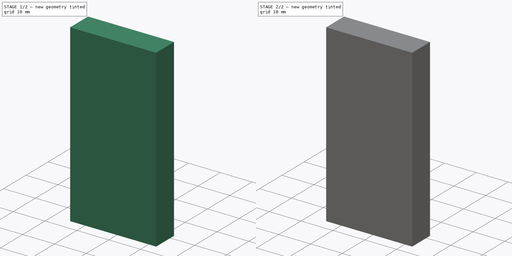
[diagram: build sequence overview — one tinted view per stage of 2, left to right]
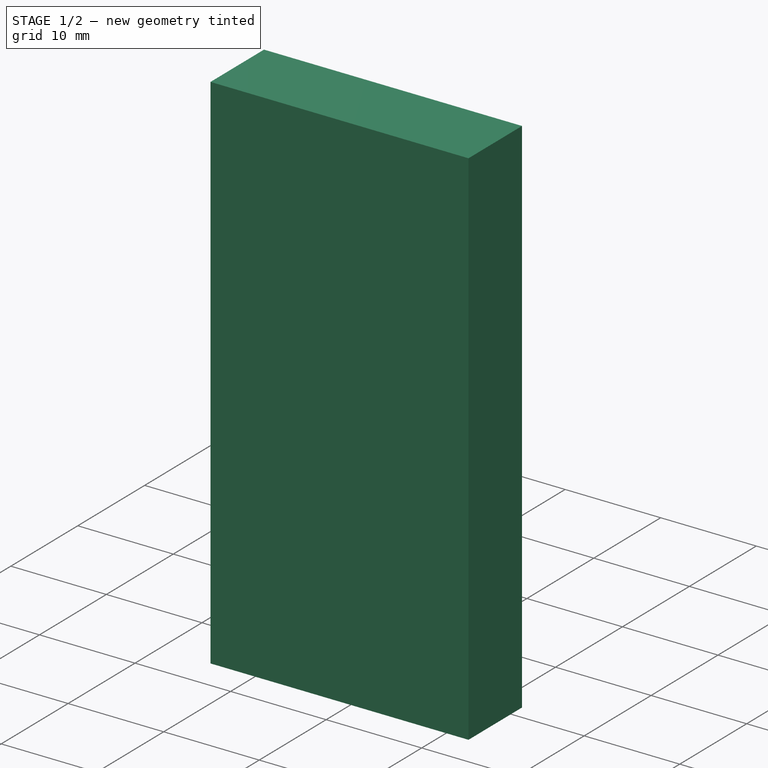
[diagram: stage 1 of 2 — iso view after this stage's code; geometry added in this stage tinted green]
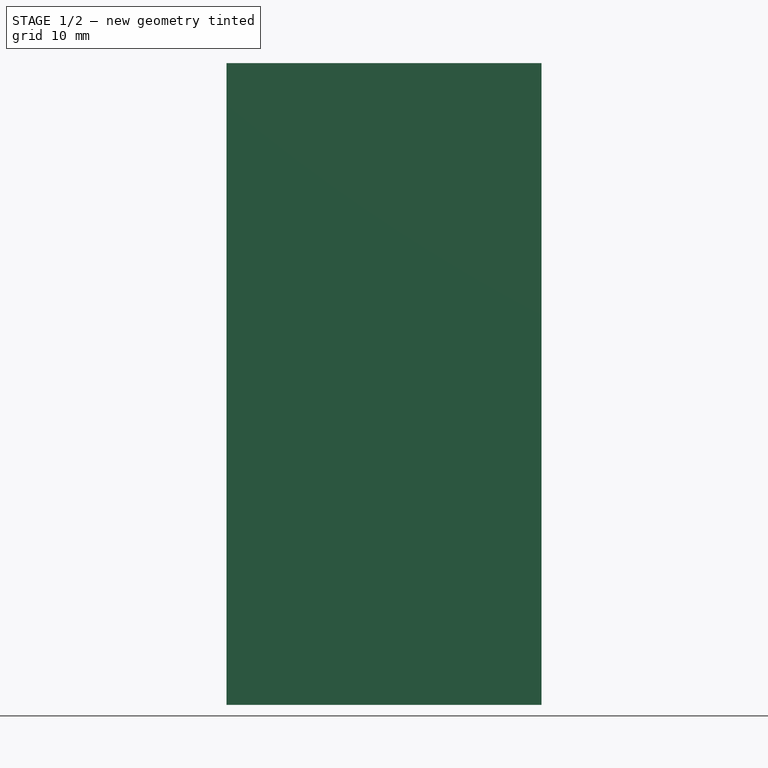
[diagram: stage 1 of 2 — front view after this stage's code; geometry added in this stage tinted green]
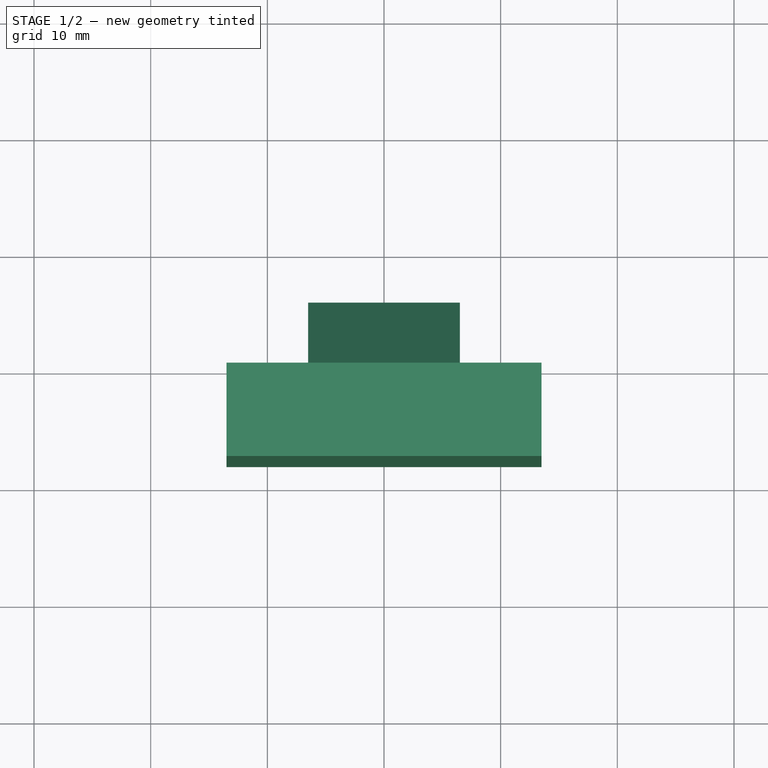
[diagram: stage 1 of 2 — top view after this stage's code; geometry added in this stage tinted green]
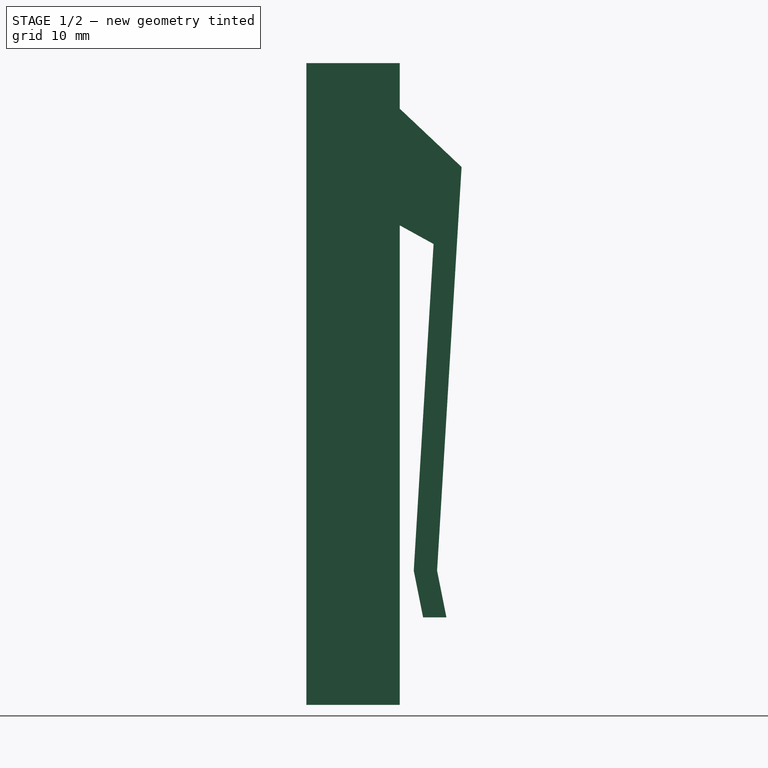
[diagram: stage 1 of 2 — right view after this stage's code; geometry added in this stage tinted green]
FCSTD DOCUMENT  (FreeCAD 0.21R33771 (Git))
Label: vioo_crochet
License: All rights reserved
LicenseURL: https://en.wikipedia.org/wiki/All_rights_reserved
objects: Sketcher::SketchObject×6, PartDesign::Pad×3, PartDesign::Point×3, Spreadsheet::Sheet×1, PartDesign::Plane×1, PartDesign::Pocket×1, PartDesign::Body×1
note: 19 computed .brp shape members not serialized (recipe doc carries the construction recipe); baked Part::Feature solids carry a one-line shape summary decoded from their .brp

FEATURE [Spreadsheet::Sheet] Spreadsheet  label="cte_vioo"
  cells = A1(hauteur_bloc)==55 mm; B1='bloc; D1(v_cr_01)==10 mm; A2(largeur_bloc)==27 mm; D2(v_cr_12)==1.6 mm; E2(h_cr_12)==2.9 mm; A3(profondeur_bloc)==8 mm; D3(v_cr_23)==28 mm; A4(hauteur_crochet)==v_cr_01 + v_cr_12 + v_cr_23 + v_cr_34; B4='crochet; D4(v_cr_34)==4 mm; A5(largeur_crochet)==13 mm; D5(v_cr_70)==5 mm; E5(h_cr_70)==5.3 mm; A6(dist_haut_triangle_crochet)==10.5 mm; A8(section_crochet_bloc)==v_cr_01; B8='sections crochet; A9(section_crochet_angle1)==2.4 mm; A10(section_crochet_angle2)==2 mm; A11(distance_debut_crochet_angle1)==8 mm; B11='angle 1; C11(distance_debut_crochet_premier_angle_haut)==v_cr_70; A12(hauteur_angle1)==h_cr_12; A13(distance_angle2_fin_crochet)==4 mm; B13='angle 2; A14(hauteur_angle2)==3.2 mm; A15(hauteur_fin_crochet)==4 mm; B15='fin crochet; A16(largeur_trou_crochet)==5.16 mm; B16='trou crochet; A17(longueur_trou_crochet)==21 mm; A18(dist_trou_section_crochet)==3.62 mm; A19(hauteur_triangle)==3 mm; B19='triangle; A20(base_triangle)==11.5 mm; A21(triangle_rectangle_cote)==9.5 mm; A22(epaisseur_triangle)==2.14 mm; A23(dist_haut_debut_triangle)==24.4 mm
FEATURE [Sketcher::SketchObject] Sketch  label="section bloc"
  FullyConstrained = true
  MapMode = 5
  Placement = pos=(0,0,0) rot=(1,0,0;1.5708rad)
  Support = -> [XZ_Plane]
  expr: .Constraints.hauteur = <<cte_vioo>>.hauteur_bloc
  expr: .Constraints.largeur = <<cte_vioo>>.largeur_bloc
  sketch-geometry (5):
    g0: LineSegment StartX=13.5 StartY=-27.5 StartZ=0 EndX=13.5 EndY=27.5 EndZ=0
    g1: LineSegment StartX=13.5 StartY=27.5 StartZ=0 EndX=-13.5 EndY=27.5 EndZ=0
    g2: LineSegment StartX=-13.5 StartY=27.5 StartZ=0 EndX=-13.5 EndY=-27.5 EndZ=0
    g3: LineSegment StartX=-13.5 StartY=-27.5 StartZ=0 EndX=13.5 EndY=-27.5 EndZ=0
    g4: GeomPoint X=0 Y=0 Z=0
  constraints (12):
    c: Coincident(g0,g1)
    c: Coincident(g1,g2)
    c: Coincident(g2,g3)
    c: Coincident(g3,g0)
    c: Horizontal(g1)
    c: Horizontal(g3)
    c: Vertical(g0)
    c: Vertical(g2)
    c: Symmetric(g1,g0,g4)
    c: Coincident(g4,g-1)
    c: DistanceX(g1,g1) = 27  'largeur'
    c: DistanceY(g2,g2) = 55  'hauteur'
FEATURE [PartDesign::Pad] Pad
  Direction = (0,-1,-2e-16)
  Length = 8
  Length2 = 10
  Placement = pos=(0,0,0) rot=(1,0,0;1.5708rad)
  Profile = -> Sketch
  ReferenceAxis = -> Sketch [N_Axis]
  Type = 0
  expr: Length = <<cte_vioo>>.profondeur_bloc
FEATURE [Sketcher::SketchObject] Sketch005  label="base triangle"
  ExternalGeometry = -> [Pad]
  FullyConstrained = true
  MapMode = 5
  Placement = pos=(0,0,0) rot=(-1,0,0;1.5708rad)
  Support = -> [Pad]
  expr: Constraints[10] = <<cte_vioo>>.dist_haut_debut_triangle
  expr: Constraints[11] = <<cte_vioo>>.largeur_bloc / 2 - <<cte_vioo>>.epaisseur_triangle / 2
  expr: Constraints[8] = <<cte_vioo>>.epaisseur_triangle
  expr: Constraints[9] = <<cte_vioo>>.base_triangle
  sketch-geometry (4):
    g0: LineSegment StartX=-1.07 StartY=8.4 StartZ=0 EndX=1.07 EndY=8.4 EndZ=0
    g1: LineSegment StartX=1.07 StartY=8.4 StartZ=0 EndX=1.07 EndY=-3.1 EndZ=0
    g2: LineSegment StartX=1.07 StartY=-3.1 StartZ=0 EndX=-1.07 EndY=-3.1 EndZ=0
    g3: LineSegment StartX=-1.07 StartY=-3.1 StartZ=0 EndX=-1.07 EndY=8.4 EndZ=0
  constraints (12):
    c: Coincident(g0,g1)
    c: Coincident(g1,g2)
    c: Coincident(g2,g3)
    c: Coincident(g3,g0)
    c: Horizontal(g0)
    c: Horizontal(g2)
    c: Vertical(g1)
    c: Vertical(g3)
    c: DistanceX(g2,g2) = 2.14
    c: DistanceY(g3,g3) = 11.5
    c: DistanceY(g-4,g2) = 24.4
    c: DistanceX(g-4,g2) = 12.43
FEATURE [PartDesign::Point] DatumPoint001
  AttacherType = Attacher::AttachEnginePoint
  MapMode = 37
  Placement = pos=(0,-4,-2e-16) rot=(0,0,1;0rad)
  Support = -> [Pad]
FEATURE [PartDesign::Point] DatumPoint002
  AttacherType = Attacher::AttachEnginePoint
  MapMode = 37
  Placement = pos=(-4e-16,-6.1e-15,27.5) rot=(0,0,1;0rad)
  Support = -> [Pad]
FEATURE [PartDesign::Point] DatumPoint003
  AttacherType = Attacher::AttachEnginePoint
  MapMode = 37
  Placement = pos=(4e-16,6.1e-15,-27.5) rot=(0,0,1;0rad)
  Support = -> [Pad]
FEATURE [PartDesign::Plane] DatumPlane001  label="plan section triangle"
  Length = 60.4881
  MapMode = 13
  Placement = pos=(0,-1.33333,0) rot=(-0.57735,0.57735,0.57735;4.18879rad)
  ResizeMode = 0
  Support = -> [DatumPoint001,DatumPoint002,DatumPoint003]
  Width = 65.4881
FEATURE [Sketcher::SketchObject] Sketch006  label="section triangle"
  ExternalGeometry = -> [Sketch005]
  FullyConstrained = true
  MapMode = 5
  Placement = pos=(0,-1.33333,0) rot=(0.57735,-0.57735,-0.57735;2.0944rad)
  Support = -> [DatumPlane001]
  expr: Constraints[5] = <<cte_vioo>>.hauteur_triangle
  expr: Constraints[6] = <<cte_vioo>>.triangle_rectangle_cote
  sketch-geometry (3):
    g0: LineSegment StartX=-1.33333 StartY=3.1 StartZ=0 EndX=-4.33333 EndY=1.1 EndZ=0
    g1: LineSegment StartX=-4.33333 StartY=1.1 StartZ=0 EndX=-1.33333 EndY=-8.4 EndZ=0
    g2: LineSegment StartX=-1.33333 StartY=-8.4 StartZ=0 EndX=-1.33333 EndY=3.1 EndZ=0
  constraints (7):
    c: Coincident(g0,g-3)
    c: Coincident(g1,g0)
    c: Coincident(g1,g-3)
    c: Coincident(g2,g1)
    c: Coincident(g2,g0)
    c: DistanceX(g0,g0) = 3
    c: DistanceY(g1,g0) = 9.5
FEATURE [Sketcher::SketchObject] Sketch007  label="section base crochet"
  ExternalGeometry = -> [Sketch005,Pad]
  FullyConstrained = true
  MapMode = 5
  Placement = pos=(0,0,0) rot=(-1,0,0;1.5708rad)
  Support = -> [Pad]
  expr: Constraints[10] = <<cte_vioo>>.largeur_crochet
  expr: Constraints[11] = <<cte_vioo>>.largeur_bloc / 2 - <<cte_vioo>>.largeur_crochet / 2
  expr: Constraints[8] = <<cte_vioo>>.dist_haut_triangle_crochet
  expr: Constraints[9] = <<cte_vioo>>.section_crochet_bloc
  sketch-geometry (4):
    g0: LineSegment StartX=-6.5 StartY=-13.6 StartZ=0 EndX=6.5 EndY=-13.6 EndZ=0
    g1: LineSegment StartX=6.5 StartY=-13.6 StartZ=0 EndX=6.5 EndY=-23.6 EndZ=0
    g2: LineSegment StartX=6.5 StartY=-23.6 StartZ=0 EndX=-6.5 EndY=-23.6 EndZ=0
    g3: LineSegment StartX=-6.5 StartY=-23.6 StartZ=0 EndX=-6.5 EndY=-13.6 EndZ=0
  constraints (12):
    c: Coincident(g0,g1)
    c: Coincident(g1,g2)
    c: Coincident(g2,g3)
    c: Coincident(g3,g0)
    c: Horizontal(g0)
    c: Horizontal(g2)
    c: Vertical(g1)
    c: Vertical(g3)
    c: DistanceY(g0,g-3) = 10.5
    c: DistanceY(g3,g3) = 10
    c: DistanceX(g0,g0) = 13
    c: DistanceX(g-4,g2) = 7
FEATURE [Sketcher::SketchObject] Sketch008  label="section crochet"
  ExternalGeometry = -> [Sketch007]
  FullyConstrained = true
  MapMode = 5
  Placement = pos=(0,-1.33333,0) rot=(0.57735,-0.57735,-0.57735;2.0944rad)
  Support = -> [DatumPlane001]
  expr: Constraints[10] = <<cte_vioo>>.v_cr_70
  expr: Constraints[11] = <<cte_vioo>>.hauteur_angle2
  expr: Constraints[12] = <<cte_vioo>>.h_cr_12
  expr: Constraints[13] = <<cte_vioo>>.hauteur_fin_crochet
  expr: Constraints[19] = <<cte_vioo>>.section_crochet_angle2
  expr: Constraints[21] = <<cte_vioo>>.v_cr_12
  expr: Constraints[22] = <<cte_vioo>>.v_cr_23
  expr: Constraints[23] = <<cte_vioo>>.v_cr_34
  expr: Constraints[25] = <<cte_vioo>>.h_cr_70
  sketch-geometry (9):
    g0: LineSegment StartX=-1.33333 StartY=13.6 StartZ=0 EndX=-1.33333 EndY=23.6 EndZ=0
    g1: LineSegment StartX=-1.33333 StartY=23.6 StartZ=0 EndX=-6.63333 EndY=18.6 EndZ=0
    g2: LineSegment StartX=-6.63333 StartY=18.6 StartZ=0 EndX=-4.53333 EndY=-16 EndZ=0
    g3: LineSegment StartX=-4.53333 StartY=-16 StartZ=0 EndX=-5.33333 EndY=-20 EndZ=0
    g4: LineSegment StartX=-5.33333 StartY=-20 StartZ=0 EndX=-3.33333 EndY=-20 EndZ=0
    g5: LineSegment StartX=-3.33333 StartY=-20 StartZ=0 EndX=-2.53333 EndY=-16 EndZ=0
    g6: LineSegment StartX=-2.53333 StartY=-16 StartZ=0 EndX=-4.23333 EndY=12 EndZ=0
    g7: LineSegment StartX=-4.23333 StartY=12 StartZ=0 EndX=-1.33333 EndY=13.6 EndZ=0
    g8: LineSegment StartX=-4.53333 StartY=-16 StartZ=0 EndX=-2.53333 EndY=-16 EndZ=0
  constraints (26):
    c: Coincident(g-3,g0)
    c: Coincident(g0,g-3)
    c: Coincident(g0,g1)
    c: Coincident(g1,g2)
    c: Coincident(g2,g3)
    c: Coincident(g3,g4)
    c: Coincident(g4,g5)
    c: Coincident(g5,g6)
    c: Coincident(g6,g7)
    c: Coincident(g7,g0)
    c: DistanceY(g1,g0) = 5
    c: DistanceX(g2,g0) = 3.2
    c: DistanceX(g6,g0) = 2.9
    c: DistanceX(g3,g0) = 4
    c: Coincident(g8,g2)
    c: Coincident(g8,g5)
    c: Equal(g8,g4)
    c: Parallel(g8,g4)
    c: Perpendicular(g0,g4)
    c: DistanceX(g4,g4) = 2
    c: DistanceY(g3,g0) = 43.6
    c: DistanceY(g6,g0) = 1.6
    c: DistanceY(g5,g6) = 28
    c: DistanceY(g4,g5) = 4
    c: DistanceY(g0,g0) = 10
    c: DistanceX(g1,g0) = 5.3
FEATURE [PartDesign::Pad] Pad004  label="crochet"
  BaseFeature = -> Pad
  Direction = (-1,0,0)
  Length = 6.5
  Length2 = 6.5
  Placement = pos=(0,0,0) rot=(1,0,0;1.5708rad)
  Profile = -> Sketch008
  ReferenceAxis = -> Sketch008 [N_Axis]
  Type = 4
  expr: Length = <<cte_vioo>>.largeur_crochet / 2
  expr: Length2 = <<cte_vioo>>.largeur_crochet / 2
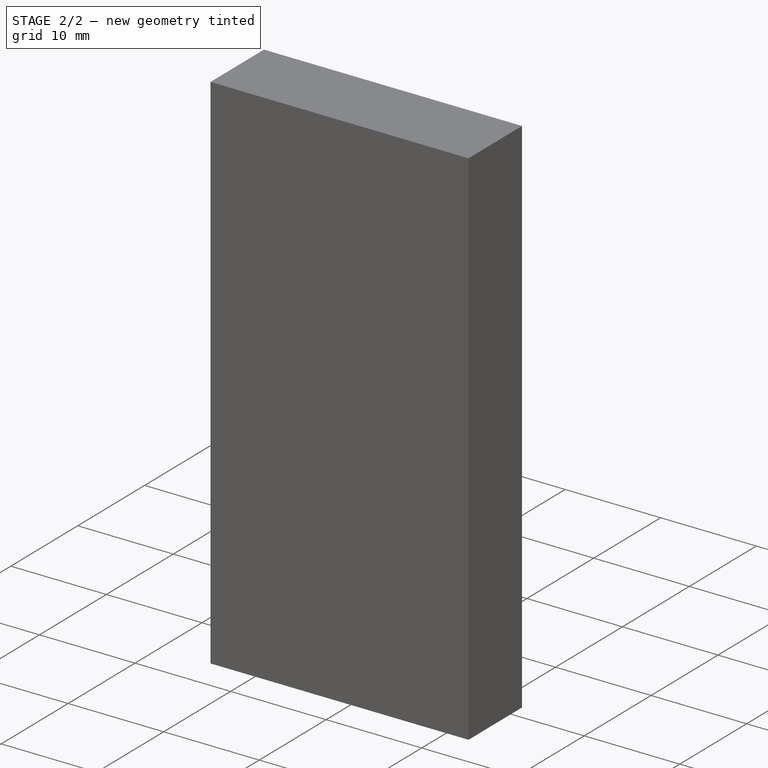
[diagram: stage 2 of 2 — iso view after this stage's code; geometry added in this stage tinted green]
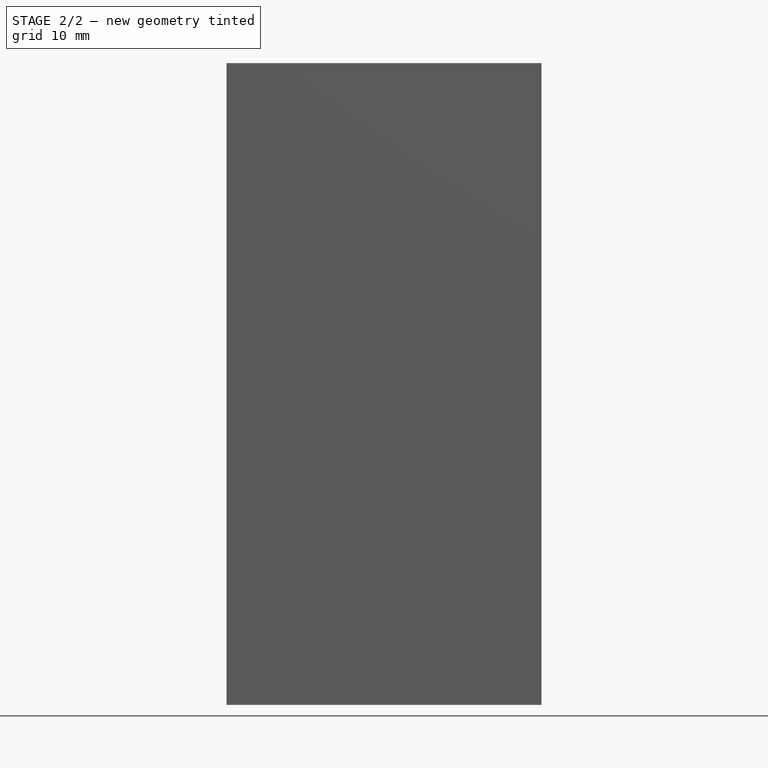
[diagram: stage 2 of 2 — front view after this stage's code; geometry added in this stage tinted green]
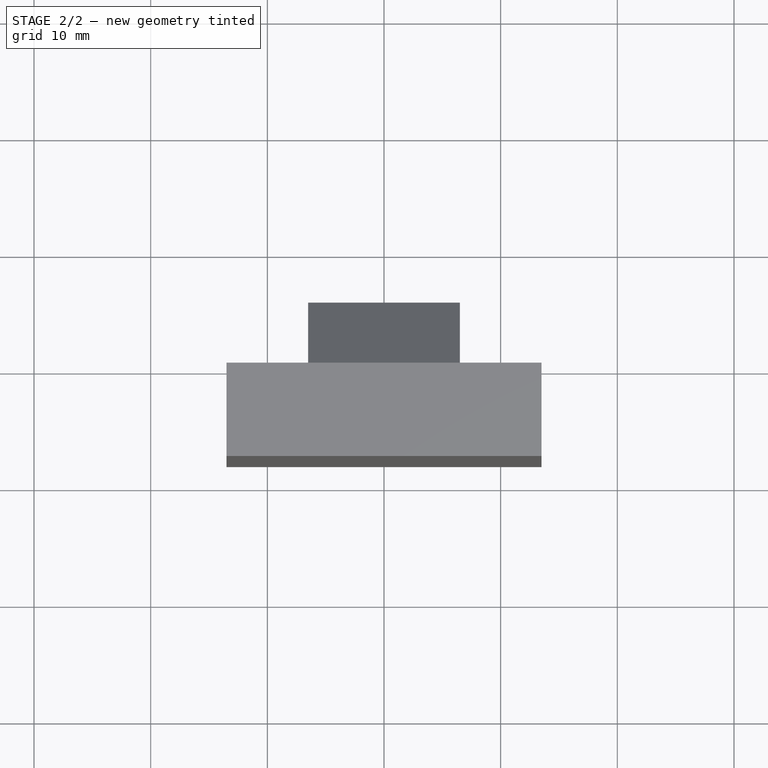
[diagram: stage 2 of 2 — top view after this stage's code; geometry added in this stage tinted green]
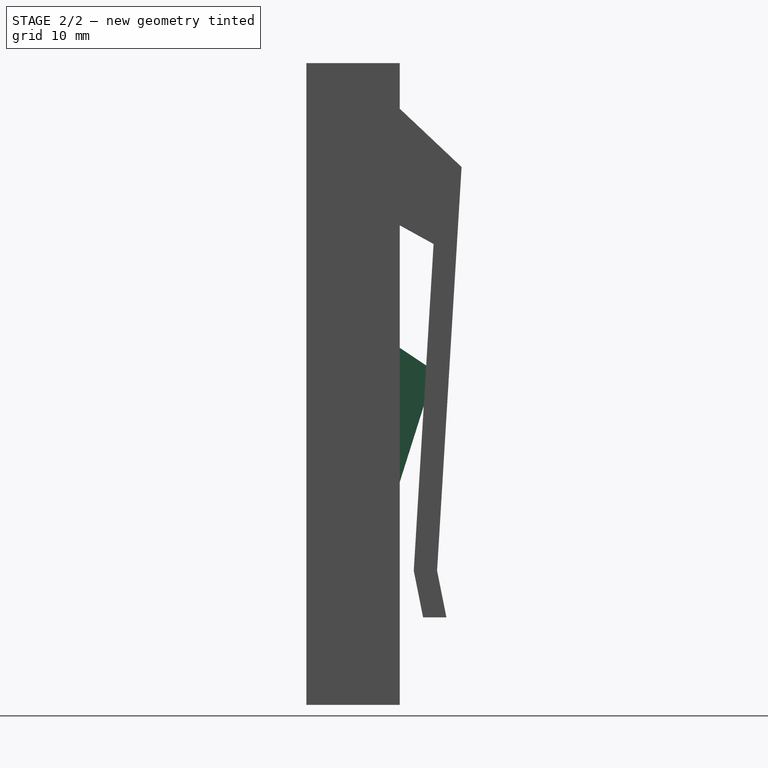
[diagram: stage 2 of 2 — right view after this stage's code; geometry added in this stage tinted green]
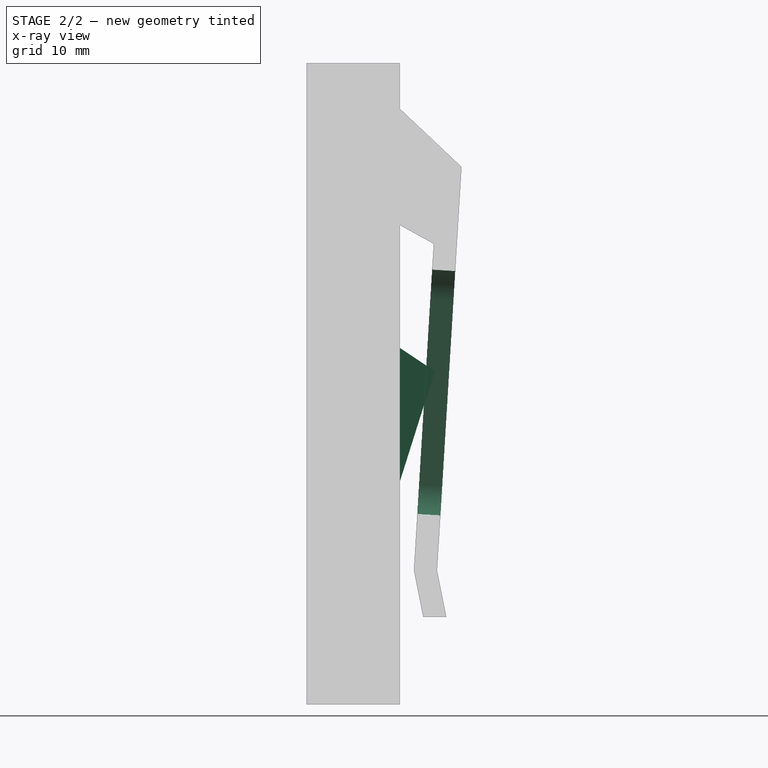
[diagram: stage 2 of 2 — x-ray composite at the right view; earlier geometry ghosted, this stage's added geometry solid]
FEATURE [Sketcher::SketchObject] Sketch009  label="section trou"
  ExternalGeometry = -> [Pad004]
  FullyConstrained = true
  MapMode = 5
  Placement = pos=(0,4.15579,-0.25223) rot=(-1,0,0;1.63142rad)
  Support = -> [Pad004]
  expr: Constraints[16] = <<cte_vioo>>.largeur_trou_crochet
  expr: Constraints[17] = <<cte_vioo>>.largeur_crochet / 2 - <<cte_vioo>>.largeur_trou_crochet / 2
  expr: Constraints[6] = <<cte_vioo>>.longueur_trou_crochet
  expr: Constraints[7] = <<cte_vioo>>.dist_trou_section_crochet
  sketch-geometry (6):
    g0: LineSegment StartX=-6.5 StartY=11.045 StartZ=0 EndX=6.5 EndY=11.045 EndZ=0
    g1: LineSegment StartX=-6.5 StartY=-9.95502 StartZ=0 EndX=6.5 EndY=-9.95502 EndZ=0
    g2: ArcOfCircle CenterX=-1.8e-15 CenterY=8.46498 CenterZ=0 NormalX=0 NormalY=0 NormalZ=1 AngleXU=0 Radius=2.58 StartAngle=1e-16 EndAngle=3.14159
    g3: ArcOfCircle CenterX=-1.8e-15 CenterY=-7.37502 CenterZ=0 NormalX=0 NormalY=0 NormalZ=1 AngleXU=0 Radius=2.58 StartAngle=3.14159 EndAngle=6.28319
    g4: LineSegment StartX=-2.58 StartY=8.46498 StartZ=0 EndX=-2.58 EndY=-7.37502 EndZ=0
    g5: LineSegment StartX=2.58 StartY=-7.37502 StartZ=0 EndX=2.58 EndY=8.46498 EndZ=0
  constraints (18):
    c: PointOnObject(g0,g-3)
    c: PointOnObject(g0,g-4)
    c: Horizontal(g0)
    c: PointOnObject(g1,g-3)
    c: PointOnObject(g1,g-4)
    c: Horizontal(g1)
    c: DistanceY(g1,g0) = 21
    c: DistanceY(g-5,g1) = 3.62
    c: Tangent(g2,g4) = -1.5708
    c: Tangent(g4,g3) = -1.5708
    c: Tangent(g3,g5) = -1.5708
    c: Tangent(g5,g2) = -1.5708
    c: Equal(g2,g3)
    c: Vertical(g4)
    c: Tangent(g2,g0)
    c: Tangent(g3,g1)
    c: DistanceX(g3,g3) = 5.16
    c: DistanceX(g1,g3) = 3.92
FEATURE [PartDesign::Pocket] Pocket  label="trou crochet"
  BaseFeature = -> Pad004
  Direction = (0,-0.998163,0.0605822)
  Length = 0
  Length2 = 5
  Placement = pos=(0,0,0) rot=(1,0,0;1.5708rad)
  Profile = -> Sketch009
  ReferenceAxis = -> Sketch009 [N_Axis]
  Type = 2
FEATURE [PartDesign::Pad] Pad005  label="triangle"
  BaseFeature = -> Pocket
  Direction = (-1,0,0)
  Length = 1.07
  Length2 = 1.07
  Placement = pos=(0,0,0) rot=(1,0,0;1.5708rad)
  Profile = -> Sketch006
  ReferenceAxis = -> Sketch006 [N_Axis]
  Type = 4
  expr: Length = <<cte_vioo>>.epaisseur_triangle / 2
  expr: Length2 = <<cte_vioo>>.epaisseur_triangle / 2
FEATURE [PartDesign::Body] Body  label="vioo"
  Group = -> [Sketch,Pad,Sketch005,DatumPoint001,DatumPoint002,DatumPoint003,DatumPlane001,Sketch006,Sketch007,Sketch008,Pad004,Sketch009,Pocket,Pad005]
  Origin = -> Origin
  Tip = -> Pad005
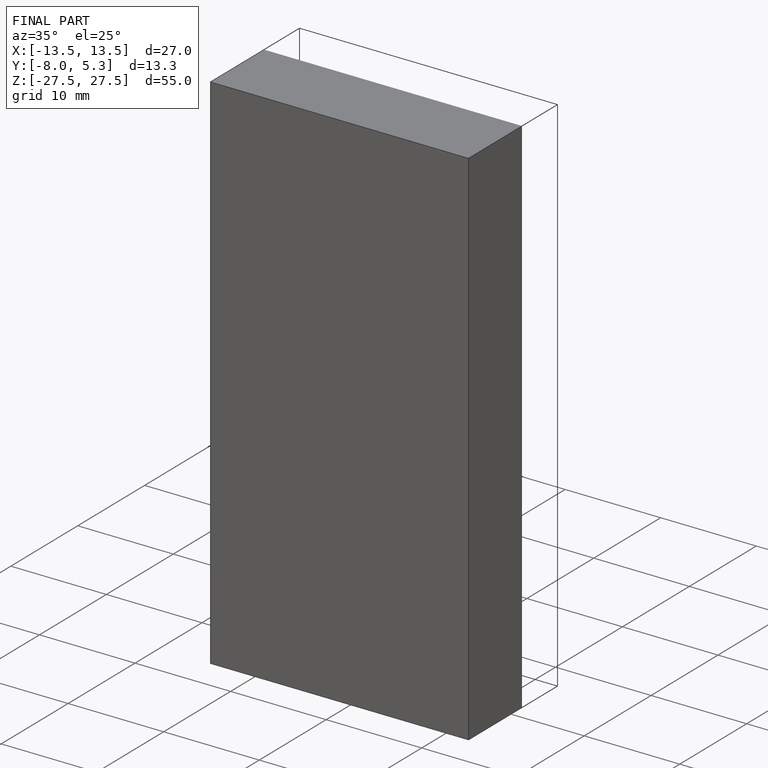
[diagram: finished part — iso view with bounding-box wireframe]
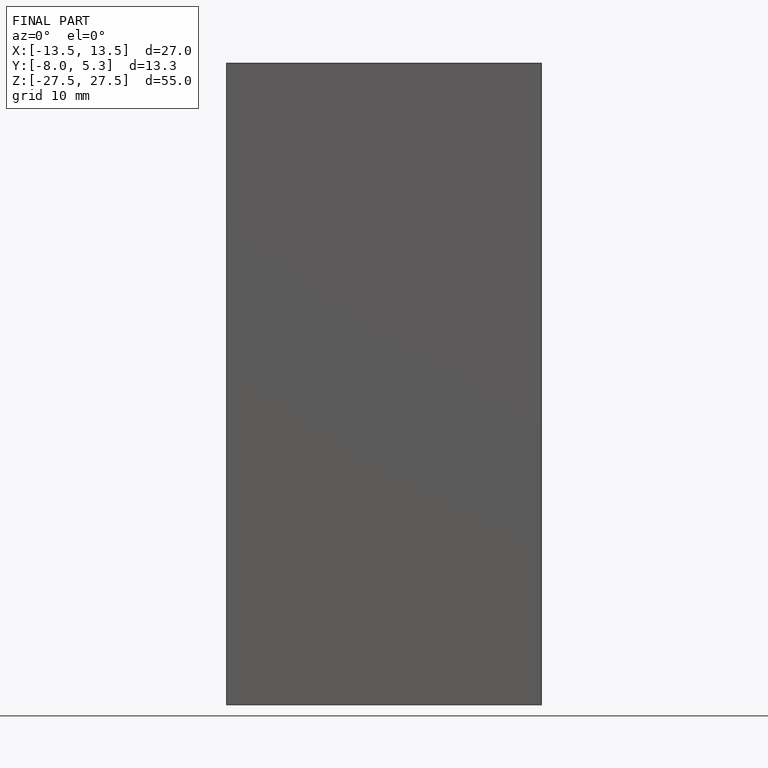
[diagram: finished part — front view with bounding-box wireframe]
